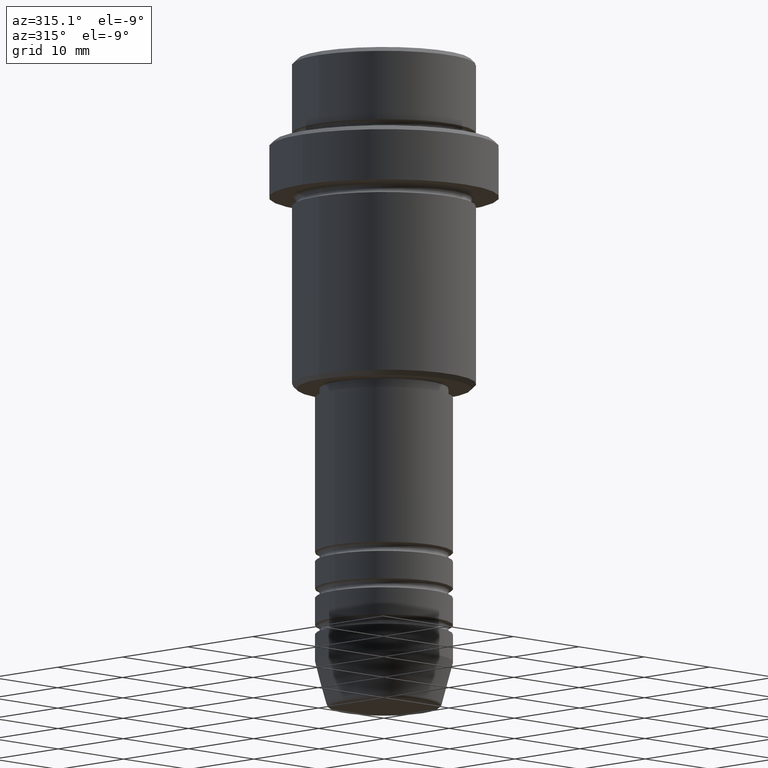
[diagram: clean part render]
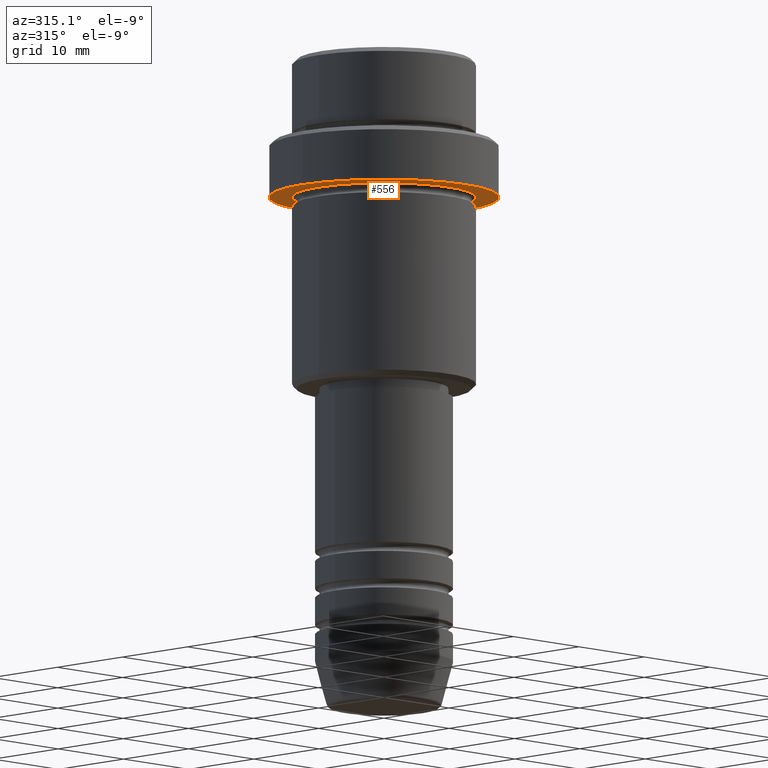
[diagram: same view with one face highlighted and labeled with its STEP entity id]
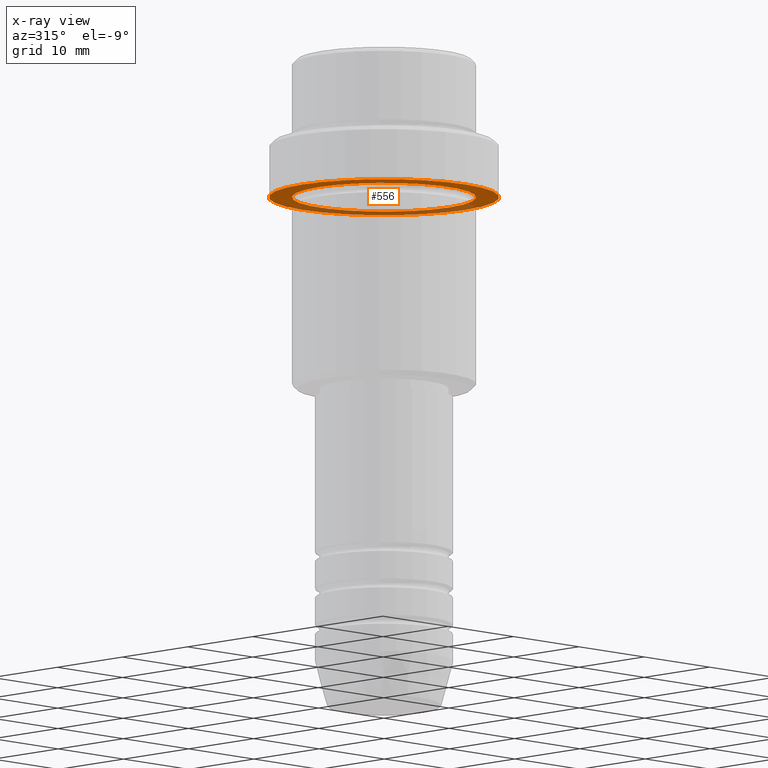
[diagram: x-ray of the same camera — body ghosted, the highlighted face saturated]
A machine part, auxiliary view. The second image highlights one B-rep face of the part: STEP entity #556.
The next image is the same camera in x-ray: the body ghosted, the highlighted face saturated — about 33% of this face is hidden behind the body in this view.
In plain terms, the highlighted planar face has unit normal (0, 0, -1).
Its self-contained STEP definition (entity closure, byte-faithful):
#33 = AXIS2_PLACEMENT_3D ( 'NONE', #844, #1058, #1141 ) ;
#74 = FACE_BOUND ( 'NONE', #618, .T. ) ;
#75 = ORIENTED_EDGE ( 'NONE', *, *, #1081, .T. ) ;
#118 = CARTESIAN_POINT ( 'NONE',  ( 12.50000000000000000, 0.000000000000000000, -15.00000000000000178 ) ) ;
#121 = CIRCLE ( 'NONE', #1247, 9.999999999999994671 ) ;
#186 = PLANE ( 'NONE',  #33 ) ;
#194 = DIRECTION ( 'NONE',  ( -0.000000000000000000, -0.000000000000000000, 1.000000000000000000 ) ) ;
#235 = CIRCLE ( 'NONE', #1060, 9.999999999999994671 ) ;
#293 = CIRCLE ( 'NONE', #1088, 12.50000000000000000 ) ;
#300 = VERTEX_POINT ( 'NONE', #480 ) ;
#317 = ORIENTED_EDGE ( 'NONE', *, *, #1414, .F. ) ;
#331 = DIRECTION ( 'NONE',  ( 1.000000000000000000, 0.000000000000000000, 0.000000000000000000 ) ) ;
#347 = VERTEX_POINT ( 'NONE', #118 ) ;
#354 = DIRECTION ( 'NONE',  ( -1.000000000000000000, 0.000000000000000000, 0.000000000000000000 ) ) ;
#383 = CARTESIAN_POINT ( 'NONE',  ( 0.000000000000000000, 0.000000000000000000, -15.00000000000000000 ) ) ;
#410 = FACE_OUTER_BOUND ( 'NONE', #1232, .T. ) ;
#425 = CIRCLE ( 'NONE', #1178, 12.50000000000000000 ) ;
#451 = ORIENTED_EDGE ( 'NONE', *, *, #785, .T. ) ;
#454 = DIRECTION ( 'NONE',  ( 1.000000000000000000, 0.000000000000000000, 0.000000000000000000 ) ) ;
#480 = CARTESIAN_POINT ( 'NONE',  ( 9.999999999999994671, 1.224646799147352665E-15, -15.00000000000000000 ) ) ;
#556 = ADVANCED_FACE ( 'NONE', ( #74, #410 ), #186, .T. ) ;
#609 = DIRECTION ( 'NONE',  ( -0.000000000000000000, -0.000000000000000000, 1.000000000000000000 ) ) ;
#618 = EDGE_LOOP ( 'NONE', ( #75, #451 ) ) ;
#633 = CARTESIAN_POINT ( 'NONE',  ( -12.50000000000000000, 1.530808498934191521E-15, -15.00000000000000178 ) ) ;
#675 = DIRECTION ( 'NONE',  ( -0.000000000000000000, -0.000000000000000000, 1.000000000000000000 ) ) ;
#677 = CARTESIAN_POINT ( 'NONE',  ( 0.000000000000000000, 0.000000000000000000, -15.00000000000000178 ) ) ;
#756 = EDGE_CURVE ( 'NONE', #347, #1354, #425, .T. ) ;
#785 = EDGE_CURVE ( 'NONE', #300, #1252, #235, .T. ) ;
#795 = DIRECTION ( 'NONE',  ( -0.000000000000000000, -0.000000000000000000, 1.000000000000000000 ) ) ;
#844 = CARTESIAN_POINT ( 'NONE',  ( 0.000000000000000000, 12.50000000000000000, -15.00000000000000000 ) ) ;
#985 = CARTESIAN_POINT ( 'NONE',  ( -9.999999999999994671, 0.000000000000000000, -15.00000000000000000 ) ) ;
#997 = CARTESIAN_POINT ( 'NONE',  ( 0.000000000000000000, 0.000000000000000000, -15.00000000000000178 ) ) ;
#1058 = DIRECTION ( 'NONE',  ( 0.000000000000000000, 0.000000000000000000, -1.000000000000000000 ) ) ;
#1060 = AXIS2_PLACEMENT_3D ( 'NONE', #383, #609, #1123 ) ;
#1081 = EDGE_CURVE ( 'NONE', #1252, #300, #121, .T. ) ;
#1088 = AXIS2_PLACEMENT_3D ( 'NONE', #997, #795, #454 ) ;
#1123 = DIRECTION ( 'NONE',  ( -1.000000000000000000, 0.000000000000000000, 0.000000000000000000 ) ) ;
#1141 = DIRECTION ( 'NONE',  ( -1.000000000000000000, 0.000000000000000000, -0.000000000000000000 ) ) ;
#1178 = AXIS2_PLACEMENT_3D ( 'NONE', #677, #194, #331 ) ;
#1192 = ORIENTED_EDGE ( 'NONE', *, *, #756, .F. ) ;
#1218 = CARTESIAN_POINT ( 'NONE',  ( 0.000000000000000000, 0.000000000000000000, -15.00000000000000000 ) ) ;
#1232 = EDGE_LOOP ( 'NONE', ( #1192, #317 ) ) ;
#1247 = AXIS2_PLACEMENT_3D ( 'NONE', #1218, #675, #354 ) ;
#1252 = VERTEX_POINT ( 'NONE', #985 ) ;
#1354 = VERTEX_POINT ( 'NONE', #633 ) ;
#1414 = EDGE_CURVE ( 'NONE', #1354, #347, #293, .T. ) ;